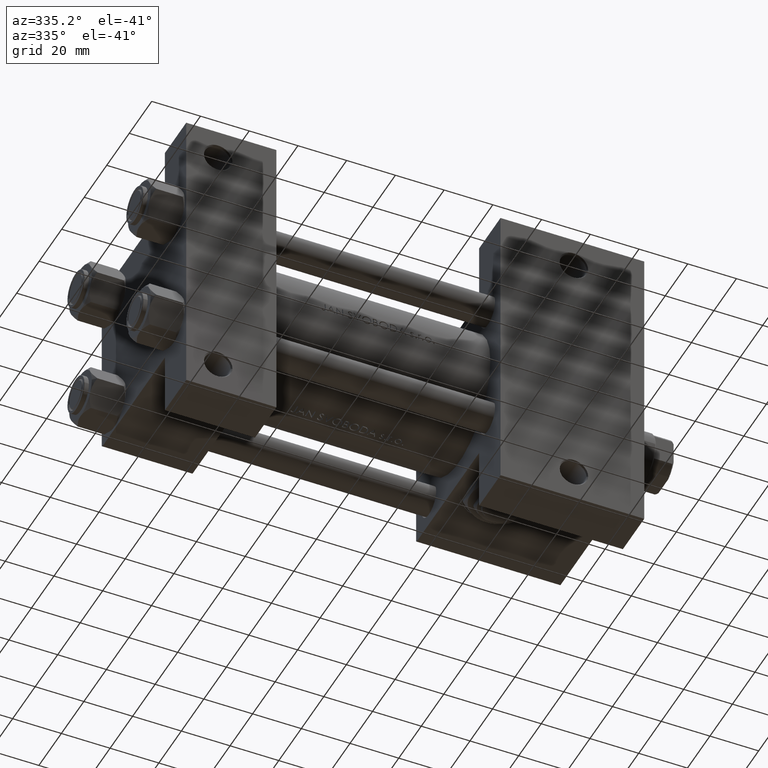
[diagram: clean part render]
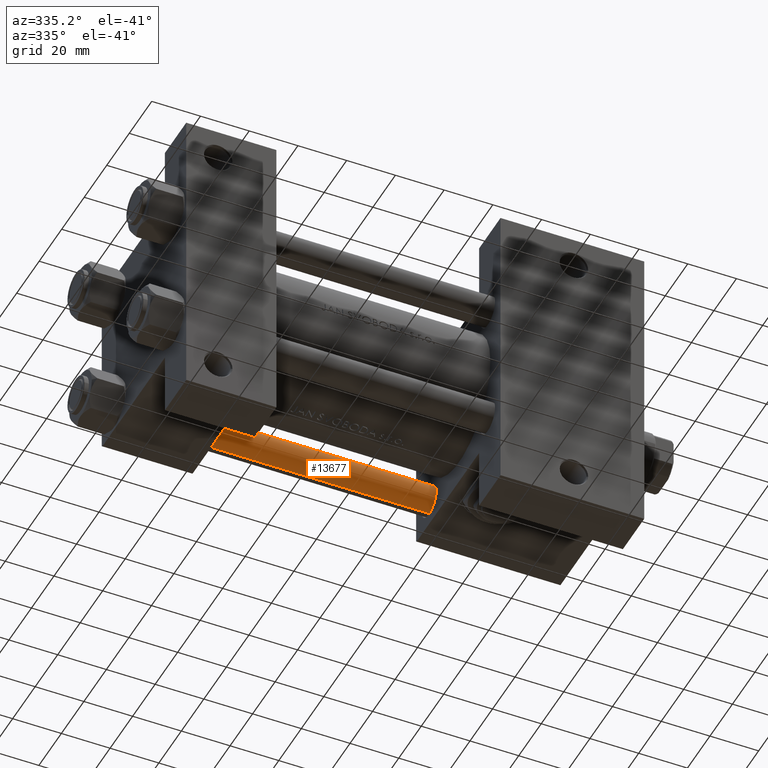
[diagram: same view with one face highlighted and labeled with its STEP entity id]
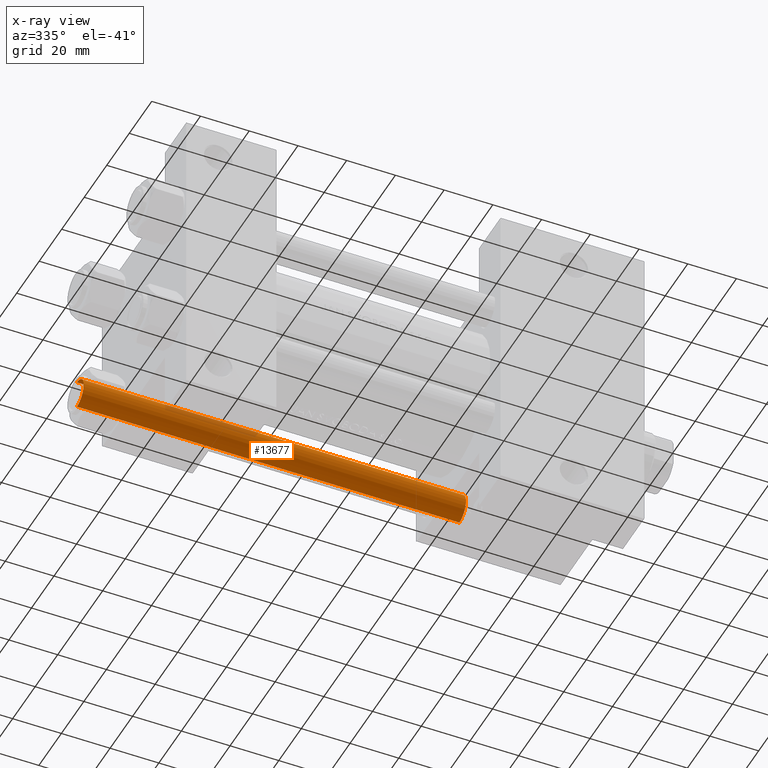
[diagram: x-ray of the same camera — body ghosted, the highlighted face saturated]
A machine part, auxiliary view. The second image highlights one B-rep face of the part: STEP entity #13677.
The next image is the same camera in x-ray: the body ghosted, the highlighted face saturated — about 5% of this face is hidden behind the body in this view.
In plain terms, the highlighted cylindrical surface (edge-blend (fillet) strip) has radius 6 mm, axis along (1, -0, -0).
Its self-contained STEP definition (entity closure, byte-faithful):
#744 = AXIS2_PLACEMENT_3D ( 'NONE', #34613, #26635, #31123 ) ;
#2073 = CARTESIAN_POINT ( 'NONE',  ( 6.000000000000000888, 7.347880794884120722E-16, 0.5000000000000004441 ) ) ;
#3173 = VECTOR ( 'NONE', #35864, 1000.000000000000000 ) ;
#3735 = CYLINDRICAL_SURFACE ( 'NONE', #744, 6.000000000000000888 ) ;
#3764 = VECTOR ( 'NONE', #37607, 1000.000000000000000 ) ;
#7038 = DIRECTION ( 'NONE',  ( 1.000000000000000000, 0.000000000000000000, 0.000000000000000000 ) ) ;
#7215 = CARTESIAN_POINT ( 'NONE',  ( -6.000000000000000888, 0.000000000000000000, 158.0000000000000000 ) ) ;
#7302 = EDGE_CURVE ( 'NONE', #40348, #38873, #41255, .T. ) ;
#10284 = ORIENTED_EDGE ( 'NONE', *, *, #7302, .T. ) ;
#10534 = DIRECTION ( 'NONE',  ( -0.000000000000000000, -0.000000000000000000, 1.000000000000000000 ) ) ;
#11706 = FACE_OUTER_BOUND ( 'NONE', #33763, .T. ) ;
#12172 = VERTEX_POINT ( 'NONE', #38542 ) ;
#13458 = DIRECTION ( 'NONE',  ( 1.000000000000000000, 0.000000000000000000, 0.000000000000000000 ) ) ;
#13677 = ADVANCED_FACE ( 'NONE', ( #11706 ), #3735, .T. ) ;
#13710 = DIRECTION ( 'NONE',  ( 0.000000000000000000, 0.000000000000000000, -1.000000000000000000 ) ) ;
#14038 = ORIENTED_EDGE ( 'NONE', *, *, #23837, .T. ) ;
#14758 = CARTESIAN_POINT ( 'NONE',  ( 0.000000000000000000, 0.000000000000000000, 0.5000000000000004441 ) ) ;
#21846 = VERTEX_POINT ( 'NONE', #27677 ) ;
#23837 = EDGE_CURVE ( 'NONE', #12172, #40348, #41339, .T. ) ;
#24370 = CARTESIAN_POINT ( 'NONE',  ( 6.000000000000000888, 7.347880794884120722E-16, 158.0000000000000000 ) ) ;
#24522 = AXIS2_PLACEMENT_3D ( 'NONE', #14758, #10534, #7038 ) ;
#26635 = DIRECTION ( 'NONE',  ( -0.000000000000000000, -0.000000000000000000, -1.000000000000000000 ) ) ;
#27424 = ORIENTED_EDGE ( 'NONE', *, *, #45844, .F. ) ;
#27677 = CARTESIAN_POINT ( 'NONE',  ( 6.000000000000000888, 7.347880794884120722E-16, 157.5000000000000000 ) ) ;
#28864 = LINE ( 'NONE', #24370, #3173 ) ;
#28997 = CARTESIAN_POINT ( 'NONE',  ( -6.000000000000000888, 0.000000000000000000, 0.5000000000000004441 ) ) ;
#30788 = EDGE_CURVE ( 'NONE', #21846, #12172, #31867, .T. ) ;
#31123 = DIRECTION ( 'NONE',  ( -1.000000000000000000, 0.000000000000000000, 0.000000000000000000 ) ) ;
#31867 = CIRCLE ( 'NONE', #41398, 6.000000000000000888 ) ;
#32129 = CARTESIAN_POINT ( 'NONE',  ( 0.000000000000000000, 0.000000000000000000, 157.5000000000000000 ) ) ;
#33763 = EDGE_LOOP ( 'NONE', ( #27424, #37426, #14038, #10284 ) ) ;
#34613 = CARTESIAN_POINT ( 'NONE',  ( 0.000000000000000000, 0.000000000000000000, 158.0000000000000000 ) ) ;
#35864 = DIRECTION ( 'NONE',  ( -0.000000000000000000, -0.000000000000000000, -1.000000000000000000 ) ) ;
#37426 = ORIENTED_EDGE ( 'NONE', *, *, #30788, .T. ) ;
#37607 = DIRECTION ( 'NONE',  ( -0.000000000000000000, -0.000000000000000000, -1.000000000000000000 ) ) ;
#38542 = CARTESIAN_POINT ( 'NONE',  ( -6.000000000000000888, 0.000000000000000000, 157.5000000000000000 ) ) ;
#38873 = VERTEX_POINT ( 'NONE', #2073 ) ;
#40348 = VERTEX_POINT ( 'NONE', #28997 ) ;
#41255 = CIRCLE ( 'NONE', #24522, 6.000000000000000888 ) ;
#41339 = LINE ( 'NONE', #7215, #3764 ) ;
#41398 = AXIS2_PLACEMENT_3D ( 'NONE', #32129, #13710, #13458 ) ;
#45844 = EDGE_CURVE ( 'NONE', #21846, #38873, #28864, .T. ) ;